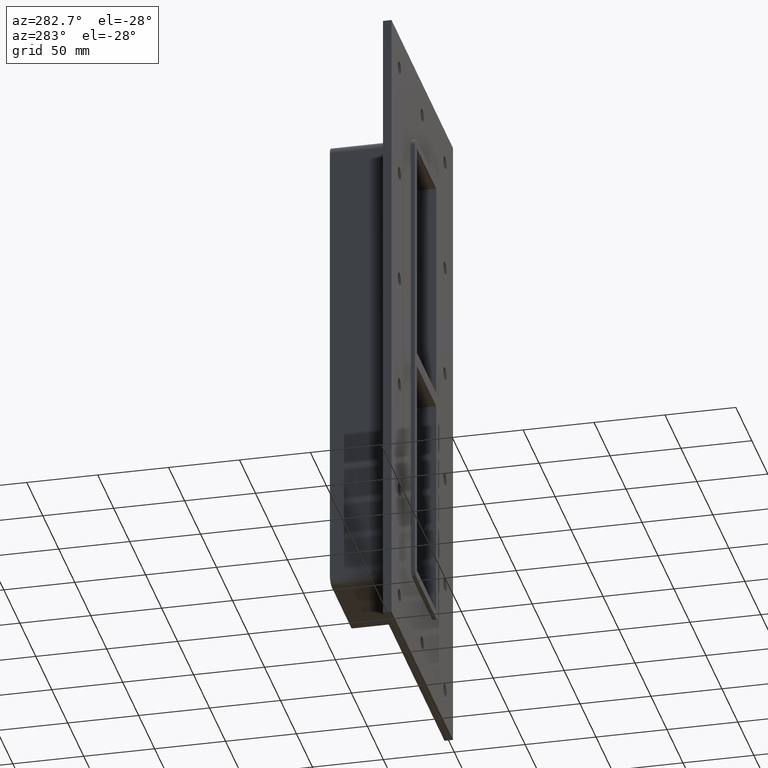
[diagram: clean part render]
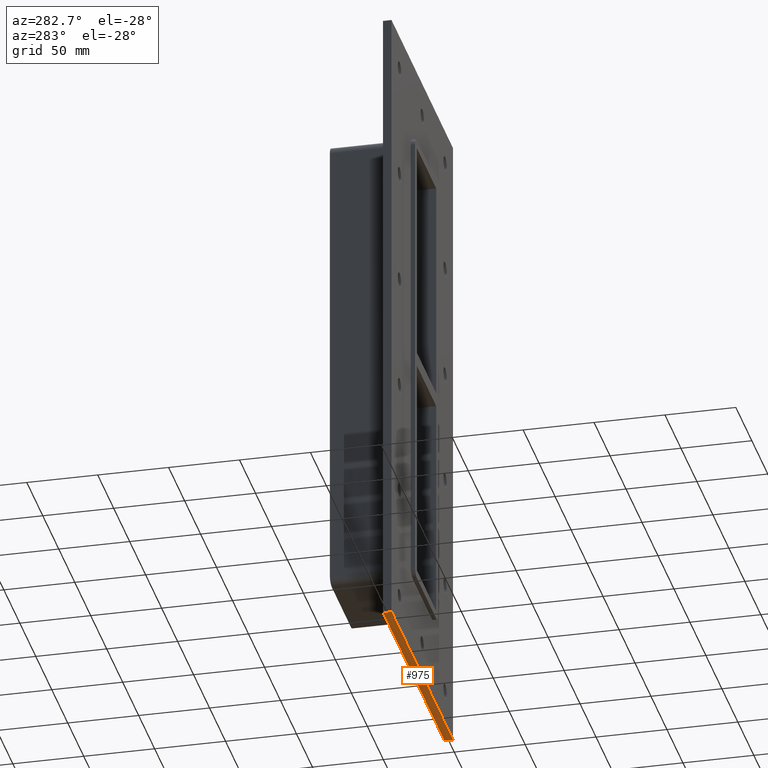
[diagram: same view with one face highlighted and labeled with its STEP entity id]
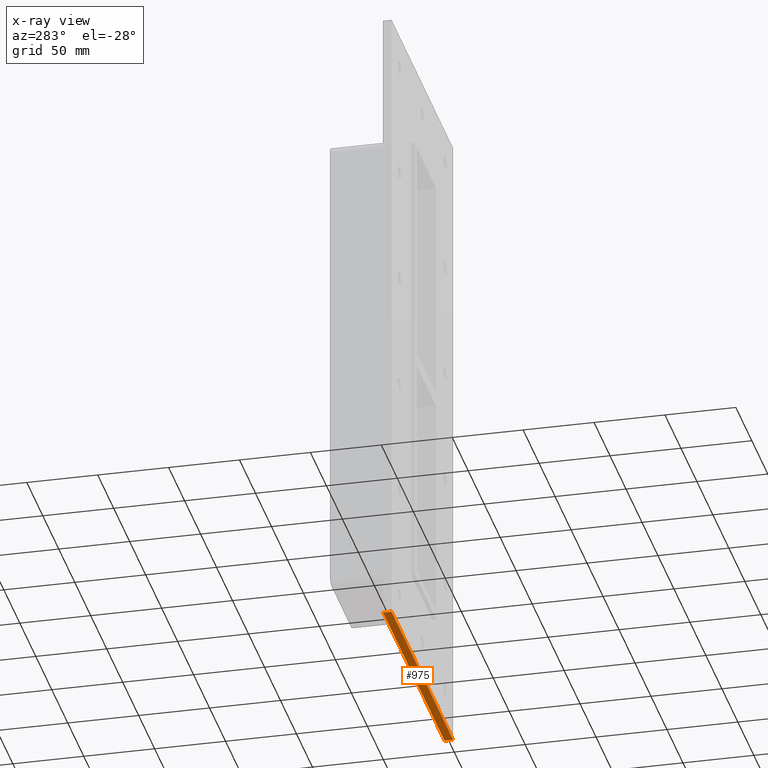
[diagram: x-ray of the same camera — body ghosted, the highlighted face saturated]
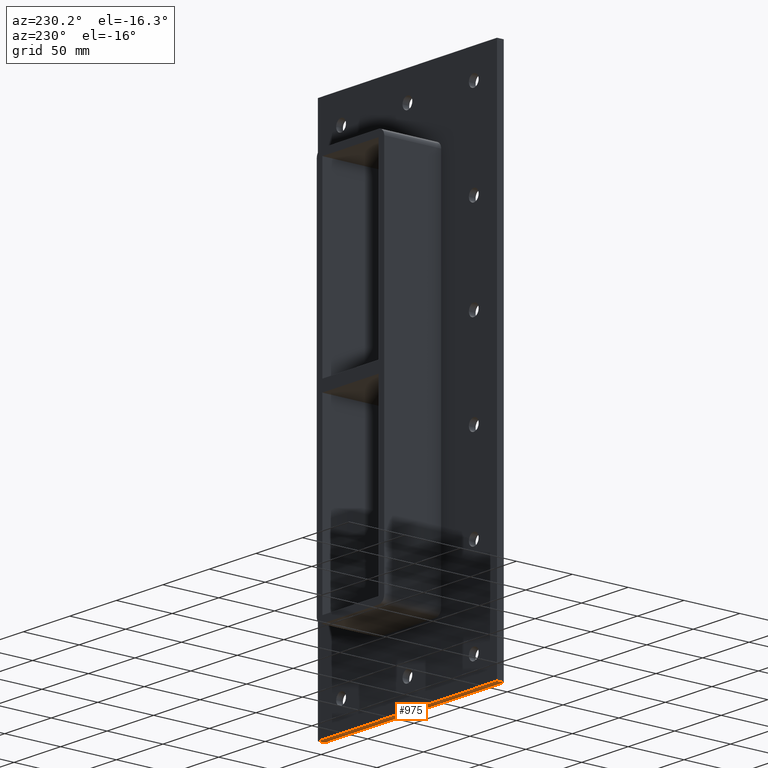
[diagram: same view with one face highlighted and labeled with its STEP entity id]
A machine part, auxiliary view. The second image highlights one B-rep face of the part: STEP entity #975.
The next image is the same camera in x-ray: the body ghosted, the highlighted face saturated — about 0% of this face is hidden behind the body in this view.
A second angle (auxiliary view) of the same face is appended — the face is thin or edge-on in the first view.
In plain terms, the highlighted planar face has unit normal (0, 0, -1).
Its self-contained STEP definition (entity closure, byte-faithful):
#648=CARTESIAN_POINT('',(96.25,6.000000000000001,-230.50000000000006));
#649=VERTEX_POINT('',#648);
#656=CARTESIAN_POINT('',(-96.25,6.000000000000001,-230.50000000000006));
#657=VERTEX_POINT('',#656);
#658=CARTESIAN_POINT('',(96.25,6.000000000000001,-230.5));
#659=DIRECTION('',(-1.0,0.0,0.0));
#660=VECTOR('',#659,192.5);
#661=LINE('',#658,#660);
#662=EDGE_CURVE('',#649,#657,#661,.T.);
#800=CARTESIAN_POINT('',(-96.25,0.0,-230.5));
#801=VERTEX_POINT('',#800);
#808=CARTESIAN_POINT('',(96.25,0.0,-230.5));
#809=VERTEX_POINT('',#808);
#810=CARTESIAN_POINT('',(96.25,0.0,-230.5));
#811=DIRECTION('',(-1.0,0.0,0.0));
#812=VECTOR('',#811,192.5);
#813=LINE('',#810,#812);
#814=EDGE_CURVE('',#809,#801,#813,.T.);
#950=CARTESIAN_POINT('',(-96.25,0.0,-230.5));
#951=DIRECTION('',(0.0,1.0,0.0));
#952=VECTOR('',#951,6.000000000000001);
#953=LINE('',#950,#952);
#954=EDGE_CURVE('',#801,#657,#953,.T.);
#959=CARTESIAN_POINT('',(96.25,0.0,-230.5));
#960=DIRECTION('',(0.0,0.0,-1.0));
#961=DIRECTION('',(-1.0,0.0,0.0));
#962=AXIS2_PLACEMENT_3D('',#959,#960,#961);
#963=PLANE('',#962);
#964=ORIENTED_EDGE('',*,*,#814,.T.);
#965=ORIENTED_EDGE('',*,*,#954,.T.);
#966=ORIENTED_EDGE('',*,*,#662,.F.);
#967=CARTESIAN_POINT('',(96.25,0.0,-230.5));
#968=DIRECTION('',(0.0,1.0,0.0));
#969=VECTOR('',#968,6.000000000000001);
#970=LINE('',#967,#969);
#971=EDGE_CURVE('',#809,#649,#970,.T.);
#972=ORIENTED_EDGE('',*,*,#971,.F.);
#973=EDGE_LOOP('',(#964,#965,#966,#972));
#974=FACE_OUTER_BOUND('',#973,.T.);
#975=ADVANCED_FACE('',(#974),#963,.T.);